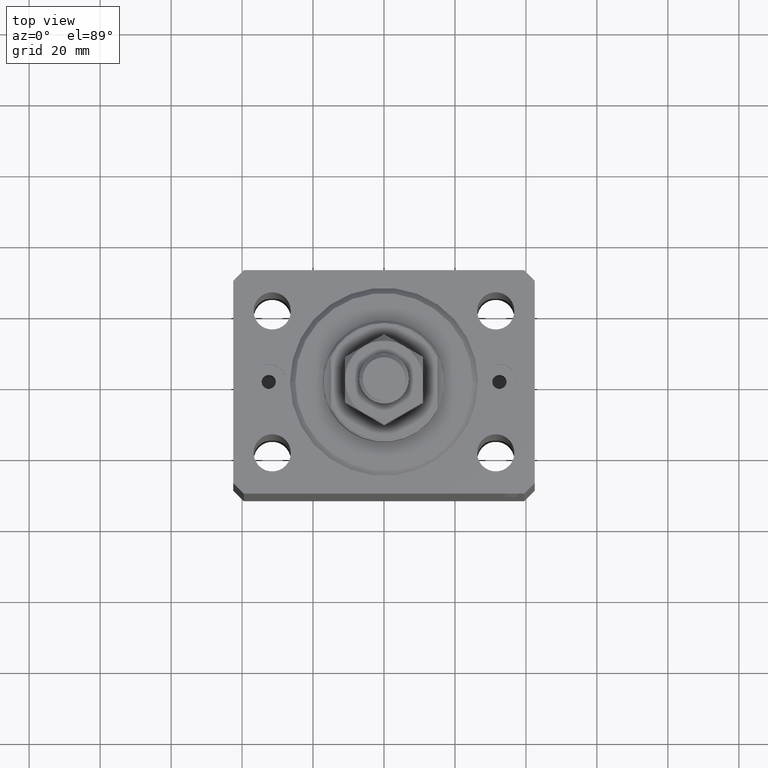
[diagram: clean part render]
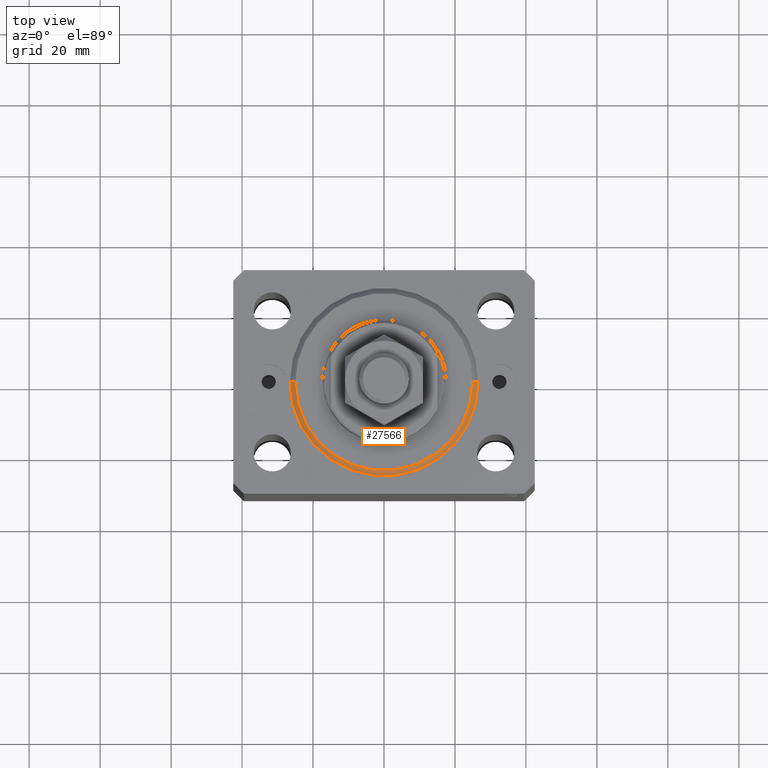
[diagram: same view with one face highlighted and labeled with its STEP entity id]
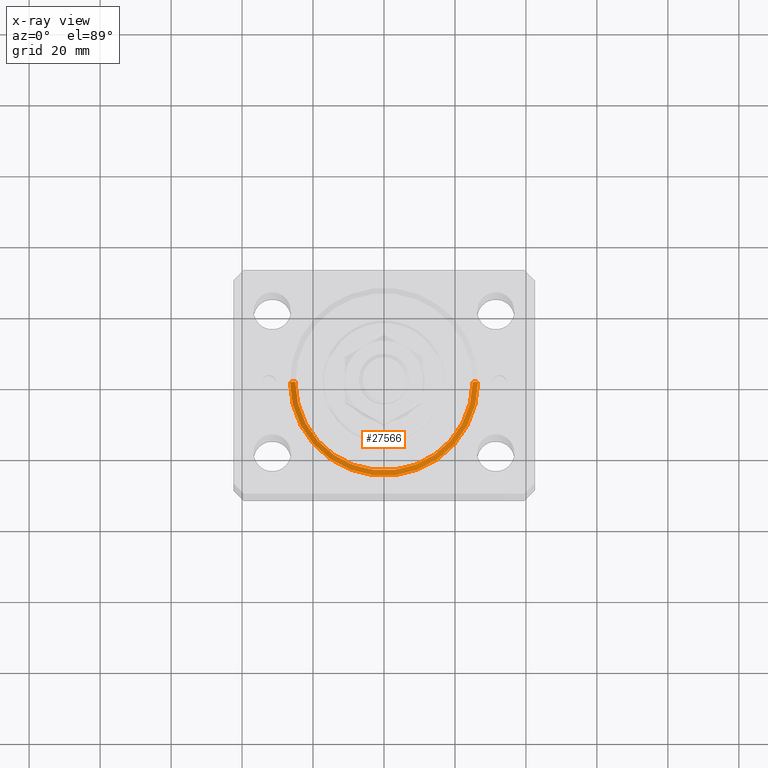
[diagram: x-ray of the same camera — body ghosted, the highlighted face saturated]
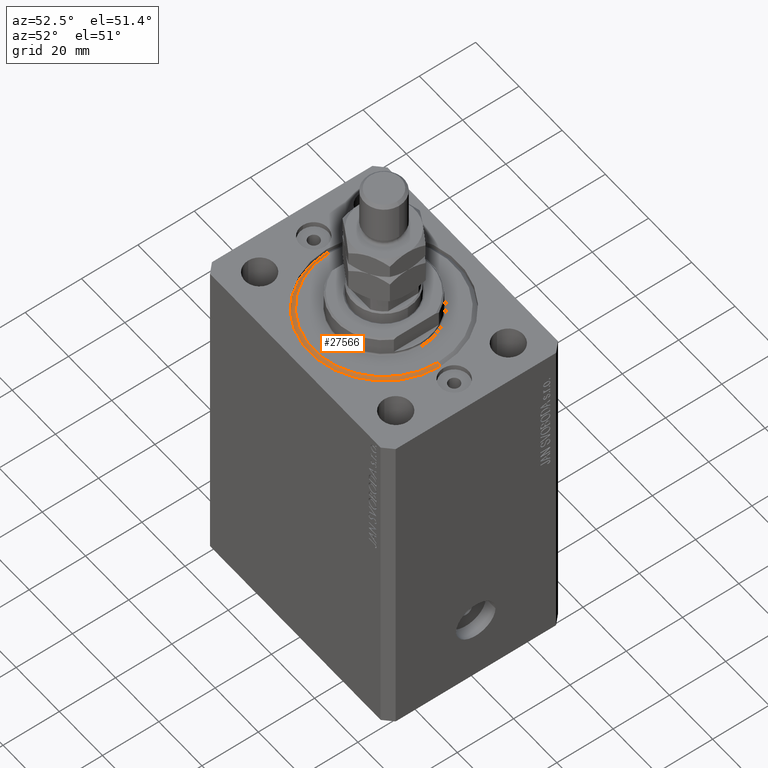
[diagram: same view with one face highlighted and labeled with its STEP entity id]
A machine part, top view. The second image highlights one B-rep face of the part: STEP entity #27566.
The next image is the same camera in x-ray: the body ghosted, the highlighted face saturated — about 0% of this face is hidden behind the body in this view.
A second angle (auxiliary view) of the same face is appended — the face is thin or edge-on in the first view.
In plain terms, the highlighted conical surface has half-angle 45 deg.
Its self-contained STEP definition (entity closure, byte-faithful):
#1513 = CARTESIAN_POINT ( 'NONE',  ( -26.50000000000000355, 0.000000000000000000, 1.500000000000046407 ) ) ;
#2207 = CIRCLE ( 'NONE', #11841, 24.99999999999995026 ) ;
#2826 = DIRECTION ( 'NONE',  ( 1.000000000000000000, 0.000000000000000000, 0.000000000000000000 ) ) ;
#4811 = LINE ( 'NONE', #40331, #41685 ) ;
#5145 = CARTESIAN_POINT ( 'NONE',  ( 24.99999999999995026, 0.000000000000000000, 0.000000000000000000 ) ) ;
#5637 = ORIENTED_EDGE ( 'NONE', *, *, #36907, .F. ) ;
#6084 = AXIS2_PLACEMENT_3D ( 'NONE', #31654, #28164, #10526 ) ;
#6322 = CARTESIAN_POINT ( 'NONE',  ( 0.000000000000000000, 0.000000000000000000, 1.500000000000046407 ) ) ;
#8330 = DIRECTION ( 'NONE',  ( 1.000000000000000000, 0.000000000000000000, 0.000000000000000000 ) ) ;
#9563 = FACE_OUTER_BOUND ( 'NONE', #25401, .T. ) ;
#10526 = DIRECTION ( 'NONE',  ( 1.000000000000000000, 0.000000000000000000, 0.000000000000000000 ) ) ;
#10591 = DIRECTION ( 'NONE',  ( 0.7071067811865491270, 0.000000000000000000, 0.7071067811865459074 ) ) ;
#11841 = AXIS2_PLACEMENT_3D ( 'NONE', #20949, #28133, #8330 ) ;
#14071 = LINE ( 'NONE', #42396, #36229 ) ;
#15734 = VERTEX_POINT ( 'NONE', #1513 ) ;
#20055 = CARTESIAN_POINT ( 'NONE',  ( 26.50000000000000355, 3.245314017740485765E-15, 1.500000000000046407 ) ) ;
#20949 = CARTESIAN_POINT ( 'NONE',  ( 0.000000000000000000, 0.000000000000000000, 0.000000000000000000 ) ) ;
#21428 = AXIS2_PLACEMENT_3D ( 'NONE', #6322, #23719, #2826 ) ;
#22133 = ORIENTED_EDGE ( 'NONE', *, *, #36258, .F. ) ;
#22752 = ORIENTED_EDGE ( 'NONE', *, *, #25619, .T. ) ;
#23719 = DIRECTION ( 'NONE',  ( -0.000000000000000000, -0.000000000000000000, 1.000000000000000000 ) ) ;
#23817 = CARTESIAN_POINT ( 'NONE',  ( -24.99999999999995026, 3.153465507804431248E-15, 0.000000000000000000 ) ) ;
#25401 = EDGE_LOOP ( 'NONE', ( #22133, #25488, #22752, #5637 ) ) ;
#25488 = ORIENTED_EDGE ( 'NONE', *, *, #29815, .F. ) ;
#25619 = EDGE_CURVE ( 'NONE', #34683, #34436, #14071, .T. ) ;
#26864 = CIRCLE ( 'NONE', #6084, 26.50000000000000355 ) ;
#27566 = ADVANCED_FACE ( 'NONE', ( #9563 ), #41458, .T. ) ;
#28133 = DIRECTION ( 'NONE',  ( -0.000000000000000000, -0.000000000000000000, -1.000000000000000000 ) ) ;
#28164 = DIRECTION ( 'NONE',  ( -0.000000000000000000, -0.000000000000000000, 1.000000000000000000 ) ) ;
#29815 = EDGE_CURVE ( 'NONE', #34683, #30948, #2207, .T. ) ;
#30948 = VERTEX_POINT ( 'NONE', #23817 ) ;
#31654 = CARTESIAN_POINT ( 'NONE',  ( 0.000000000000000000, 0.000000000000000000, 1.500000000000046407 ) ) ;
#34436 = VERTEX_POINT ( 'NONE', #20055 ) ;
#34683 = VERTEX_POINT ( 'NONE', #5145 ) ;
#36229 = VECTOR ( 'NONE', #10591, 1000.000000000000000 ) ;
#36258 = EDGE_CURVE ( 'NONE', #30948, #15734, #4811, .T. ) ;
#36619 = DIRECTION ( 'NONE',  ( -0.7071067811865491270, 8.659560562354952580E-17, 0.7071067811865459074 ) ) ;
#36907 = EDGE_CURVE ( 'NONE', #15734, #34436, #26864, .T. ) ;
#40331 = CARTESIAN_POINT ( 'NONE',  ( -26.50000000000000355, 3.245314017740486554E-15, 1.500000000000046407 ) ) ;
#41458 = CONICAL_SURFACE ( 'NONE', #21428, 26.50000000000000355, 0.7853981633974506105 ) ;
#41685 = VECTOR ( 'NONE', #36619, 1000.000000000000000 ) ;
#42396 = CARTESIAN_POINT ( 'NONE',  ( 26.50000000000000355, 0.000000000000000000, 1.500000000000046407 ) ) ;